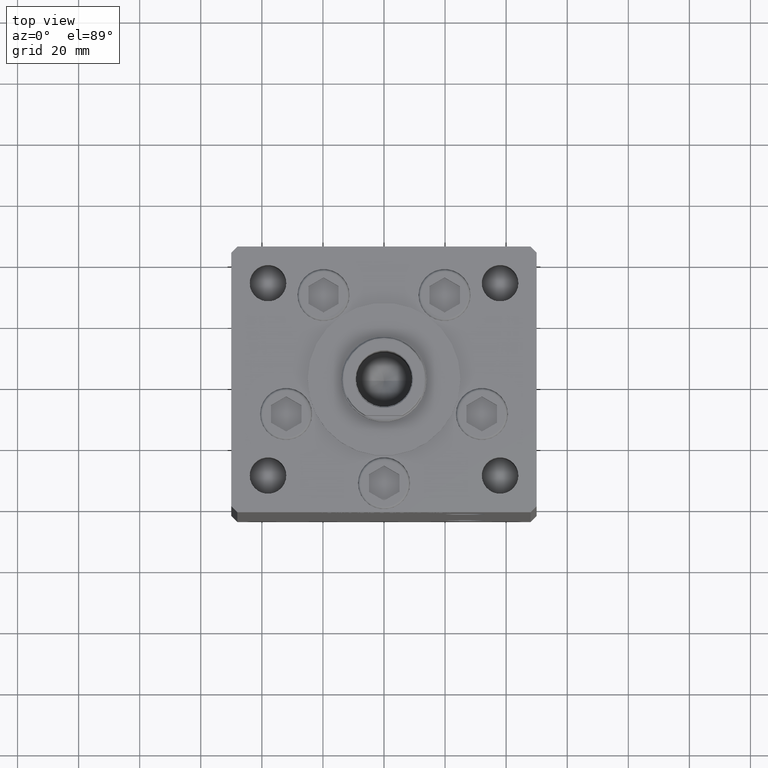
[diagram: clean part render]
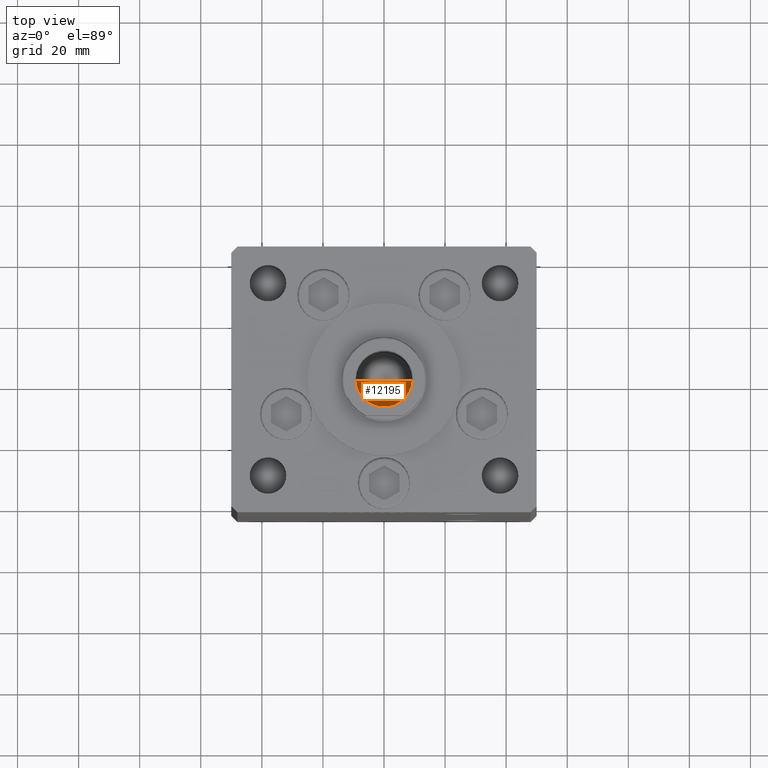
[diagram: same view with one face highlighted and labeled with its STEP entity id]
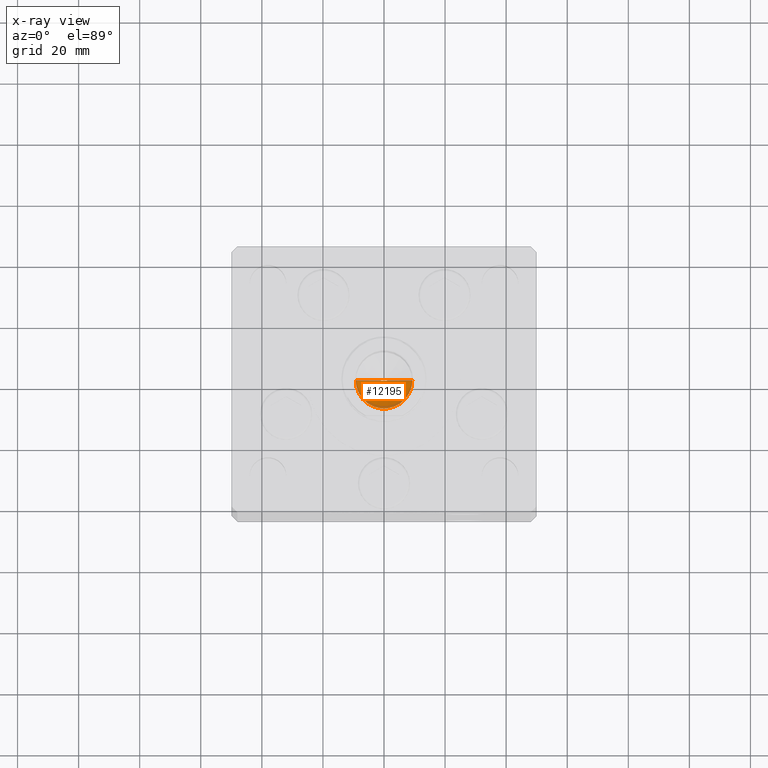
[diagram: x-ray of the same camera — body ghosted, the highlighted face saturated]
A machine part, top view. The second image highlights one B-rep face of the part: STEP entity #12195.
The next image is the same camera in x-ray: the body ghosted, the highlighted face saturated — about 9% of this face is hidden behind the body in this view.
In plain terms, the highlighted conical surface has half-angle 59 deg.
Its self-contained STEP definition (entity closure, byte-faithful):
#716 = CARTESIAN_POINT ( 'NONE',  ( 9.249999999999994671, 0.000000000000000000, 130.2500000000000000 ) ) ;
#936 = VERTEX_POINT ( 'NONE', #43622 ) ;
#1478 = EDGE_CURVE ( 'NONE', #24017, #936, #27719, .T. ) ;
#3695 = VECTOR ( 'NONE', #21794, 1000.000000000000000 ) ;
#4678 = LINE ( 'NONE', #716, #21480 ) ;
#5685 = CARTESIAN_POINT ( 'NONE',  ( -9.249999999999994671, 1.132798289211300909E-15, 130.2500000000000000 ) ) ;
#6302 = DIRECTION ( 'NONE',  ( -0.000000000000000000, -0.000000000000000000, 1.000000000000000000 ) ) ;
#9304 = ORIENTED_EDGE ( 'NONE', *, *, #28658, .T. ) ;
#10263 = DIRECTION ( 'NONE',  ( 1.000000000000000000, 0.000000000000000000, 0.000000000000000000 ) ) ;
#12195 = ADVANCED_FACE ( 'NONE', ( #29694 ), #38981, .F. ) ;
#13603 = DIRECTION ( 'NONE',  ( 1.000000000000000000, 0.000000000000000000, 0.000000000000000000 ) ) ;
#14297 = EDGE_LOOP ( 'NONE', ( #19107, #9304, #39856 ) ) ;
#14486 = CARTESIAN_POINT ( 'NONE',  ( 0.000000000000000000, 0.000000000000000000, 130.2500000000000000 ) ) ;
#17054 = AXIS2_PLACEMENT_3D ( 'NONE', #37873, #45540, #13603 ) ;
#19107 = ORIENTED_EDGE ( 'NONE', *, *, #32346, .F. ) ;
#21299 = DIRECTION ( 'NONE',  ( 0.8571673007021117785, 0.000000000000000000, 0.5150380749100550437 ) ) ;
#21480 = VECTOR ( 'NONE', #21299, 1000.000000000000000 ) ;
#21794 = DIRECTION ( 'NONE',  ( -0.8571673007021117785, 1.049727191138617956E-16, 0.5150380749100550437 ) ) ;
#24017 = VERTEX_POINT ( 'NONE', #50629 ) ;
#26190 = CARTESIAN_POINT ( 'NONE',  ( -1.046994375366439223E-14, 0.000000000000000000, 124.6920392739950643 ) ) ;
#27719 = CIRCLE ( 'NONE', #40323, 9.249999999999994671 ) ;
#28658 = EDGE_CURVE ( 'NONE', #34750, #24017, #41842, .T. ) ;
#29694 = FACE_OUTER_BOUND ( 'NONE', #14297, .T. ) ;
#32346 = EDGE_CURVE ( 'NONE', #34750, #936, #4678, .T. ) ;
#34750 = VERTEX_POINT ( 'NONE', #26190 ) ;
#37873 = CARTESIAN_POINT ( 'NONE',  ( 0.000000000000000000, 0.000000000000000000, 130.2500000000000000 ) ) ;
#38981 = CONICAL_SURFACE ( 'NONE', #17054, 9.249999999999994671, 1.029744258676653423 ) ;
#39856 = ORIENTED_EDGE ( 'NONE', *, *, #1478, .T. ) ;
#40323 = AXIS2_PLACEMENT_3D ( 'NONE', #14486, #6302, #10263 ) ;
#41842 = LINE ( 'NONE', #5685, #3695 ) ;
#43622 = CARTESIAN_POINT ( 'NONE',  ( 9.249999999999994671, 0.000000000000000000, 130.2500000000000000 ) ) ;
#45540 = DIRECTION ( 'NONE',  ( -0.000000000000000000, -0.000000000000000000, 1.000000000000000000 ) ) ;
#50629 = CARTESIAN_POINT ( 'NONE',  ( -9.249999999999994671, 1.132798289211300909E-15, 130.2500000000000000 ) ) ;